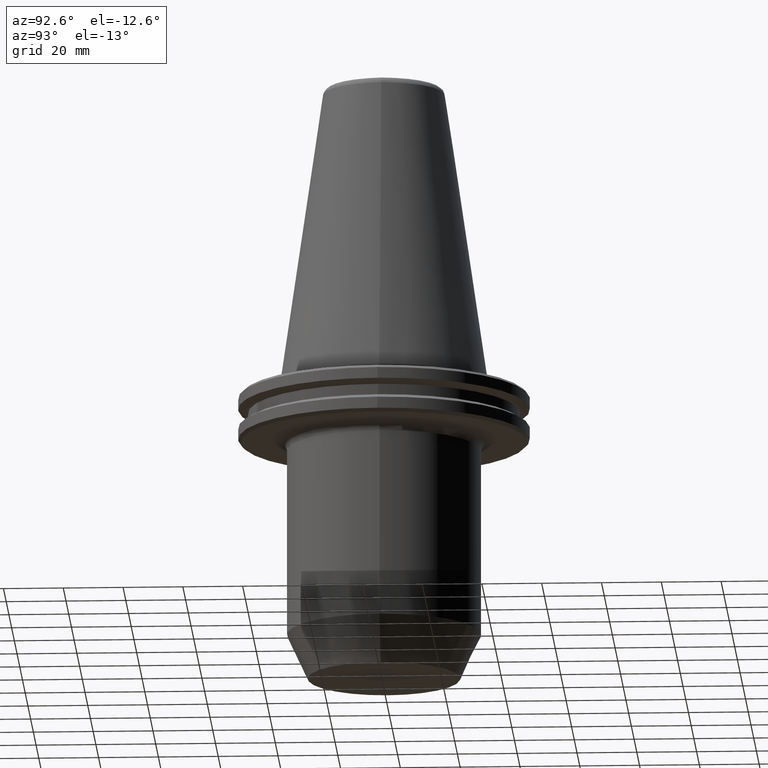
[diagram: clean part render]
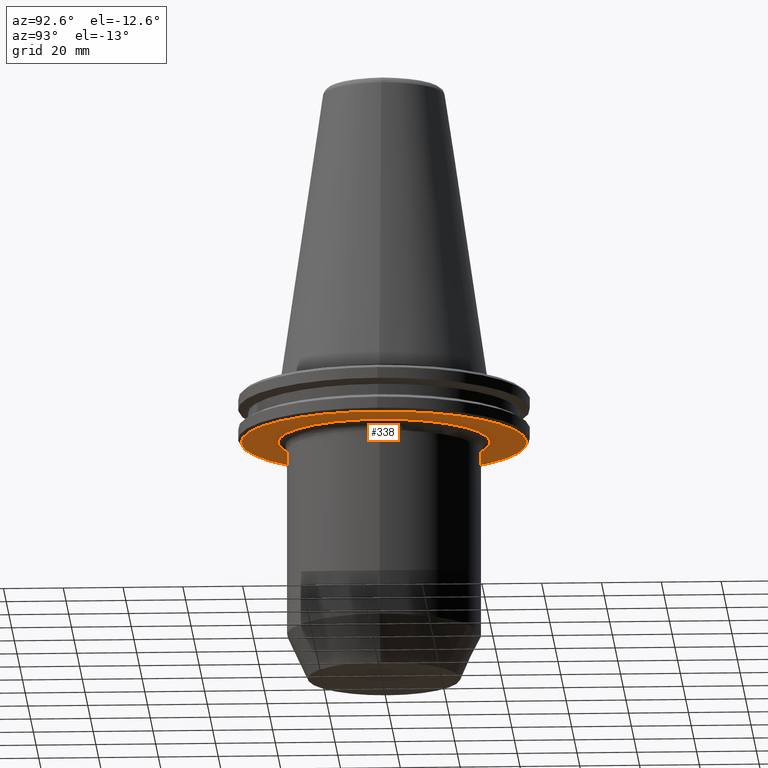
[diagram: same view with one face highlighted and labeled with its STEP entity id]
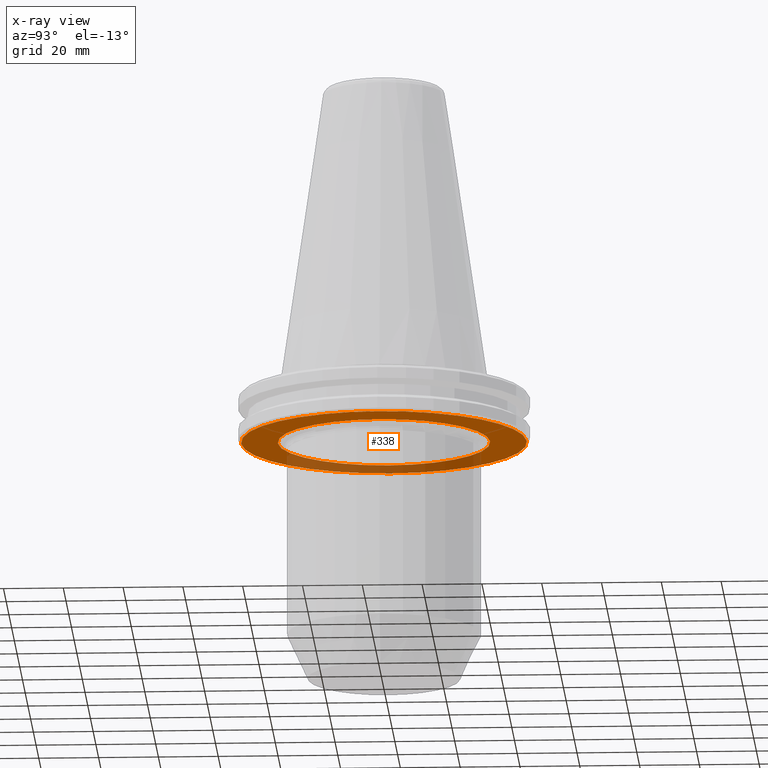
[diagram: x-ray of the same camera — body ghosted, the highlighted face saturated]
A machine part, auxiliary view. The second image highlights one B-rep face of the part: STEP entity #338.
The next image is the same camera in x-ray: the body ghosted, the highlighted face saturated — about 28% of this face is hidden behind the body in this view.
In plain terms, the highlighted planar face has unit normal (0, -0, 1).
Its self-contained STEP definition (entity closure, byte-faithful):
#17 = VERTEX_POINT ( 'NONE', #117 ) ;
#60 = AXIS2_PLACEMENT_3D ( 'NONE', #774, #535, #618 ) ;
#106 = AXIS2_PLACEMENT_3D ( 'NONE', #341, #118, #729 ) ;
#107 = ORIENTED_EDGE ( 'NONE', *, *, #379, .F. ) ;
#117 = CARTESIAN_POINT ( 'NONE',  ( 35.50000000000000700, 0.0000000000000000000, -19.09999999999995200 ) ) ;
#118 = DIRECTION ( 'NONE',  ( -0.0000000000000000000, -0.0000000000000000000, 1.000000000000000000 ) ) ;
#126 = VERTEX_POINT ( 'NONE', #695 ) ;
#175 = EDGE_CURVE ( 'NONE', #126, #17, #633, .T. ) ;
#177 = FACE_OUTER_BOUND ( 'NONE', #688, .T. ) ;
#247 = AXIS2_PLACEMENT_3D ( 'NONE', #330, #910, #370 ) ;
#272 = AXIS2_PLACEMENT_3D ( 'NONE', #373, #369, #593 ) ;
#310 = CARTESIAN_POINT ( 'NONE',  ( -47.74999999999973700, 5.908920805885974100E-015, -19.09999999999995200 ) ) ;
#330 = CARTESIAN_POINT ( 'NONE',  ( 0.0000000000000000000, 0.0000000000000000000, -19.09999999999995200 ) ) ;
#338 = ADVANCED_FACE ( 'NONE', ( #837, #177 ), #746, .F. ) ;
#341 = CARTESIAN_POINT ( 'NONE',  ( 0.0000000000000000000, 0.0000000000000000000, -19.09999999999995200 ) ) ;
#369 = DIRECTION ( 'NONE',  ( 0.0000000000000000000, -0.0000000000000000000, 1.000000000000000000 ) ) ;
#370 = DIRECTION ( 'NONE',  ( 1.000000000000000000, 0.0000000000000000000, 0.0000000000000000000 ) ) ;
#373 = CARTESIAN_POINT ( 'NONE',  ( 0.0000000000000000000, 47.74999999999973700, -19.09999999999995200 ) ) ;
#379 = EDGE_CURVE ( 'NONE', #953, #809, #914, .T. ) ;
#493 = ORIENTED_EDGE ( 'NONE', *, *, #609, .F. ) ;
#507 = EDGE_LOOP ( 'NONE', ( #665, #828 ) ) ;
#535 = DIRECTION ( 'NONE',  ( -0.0000000000000000000, -0.0000000000000000000, 1.000000000000000000 ) ) ;
#563 = AXIS2_PLACEMENT_3D ( 'NONE', #804, #787, #802 ) ;
#593 = DIRECTION ( 'NONE',  ( 1.000000000000000000, 0.0000000000000000000, 0.0000000000000000000 ) ) ;
#609 = EDGE_CURVE ( 'NONE', #809, #953, #936, .T. ) ;
#618 = DIRECTION ( 'NONE',  ( 1.000000000000000000, 0.0000000000000000000, 0.0000000000000000000 ) ) ;
#633 = CIRCLE ( 'NONE', #563, 35.50000000000000700 ) ;
#661 = EDGE_CURVE ( 'NONE', #17, #126, #717, .T. ) ;
#665 = ORIENTED_EDGE ( 'NONE', *, *, #661, .T. ) ;
#688 = EDGE_LOOP ( 'NONE', ( #107, #493 ) ) ;
#695 = CARTESIAN_POINT ( 'NONE',  ( -35.50000000000000700, 4.347496136973104100E-015, -19.09999999999995200 ) ) ;
#717 = CIRCLE ( 'NONE', #60, 35.50000000000000700 ) ;
#729 = DIRECTION ( 'NONE',  ( 1.000000000000000000, 0.0000000000000000000, 0.0000000000000000000 ) ) ;
#746 = PLANE ( 'NONE',  #272 ) ;
#774 = CARTESIAN_POINT ( 'NONE',  ( 0.0000000000000000000, 0.0000000000000000000, -19.09999999999995200 ) ) ;
#787 = DIRECTION ( 'NONE',  ( -0.0000000000000000000, -0.0000000000000000000, 1.000000000000000000 ) ) ;
#802 = DIRECTION ( 'NONE',  ( 1.000000000000000000, 0.0000000000000000000, 0.0000000000000000000 ) ) ;
#804 = CARTESIAN_POINT ( 'NONE',  ( 0.0000000000000000000, 0.0000000000000000000, -19.09999999999995200 ) ) ;
#809 = VERTEX_POINT ( 'NONE', #310 ) ;
#828 = ORIENTED_EDGE ( 'NONE', *, *, #175, .T. ) ;
#837 = FACE_BOUND ( 'NONE', #507, .T. ) ;
#844 = CARTESIAN_POINT ( 'NONE',  ( 47.74999999999973700, 0.0000000000000000000, -19.09999999999995200 ) ) ;
#910 = DIRECTION ( 'NONE',  ( -0.0000000000000000000, -0.0000000000000000000, 1.000000000000000000 ) ) ;
#914 = CIRCLE ( 'NONE', #247, 47.74999999999973700 ) ;
#936 = CIRCLE ( 'NONE', #106, 47.74999999999973700 ) ;
#953 = VERTEX_POINT ( 'NONE', #844 ) ;